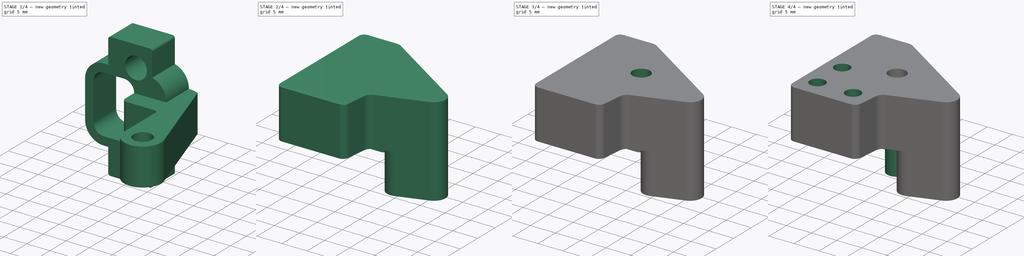
[diagram: build sequence overview — one tinted view per stage of 4, left to right]
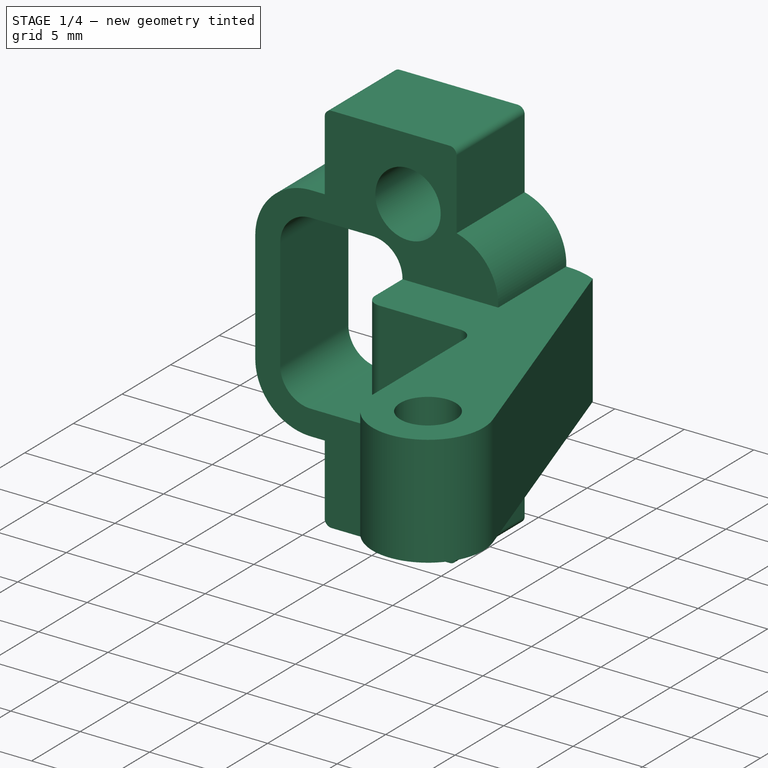
[diagram: stage 1 of 4 — iso view after this stage's code; geometry added in this stage tinted green]
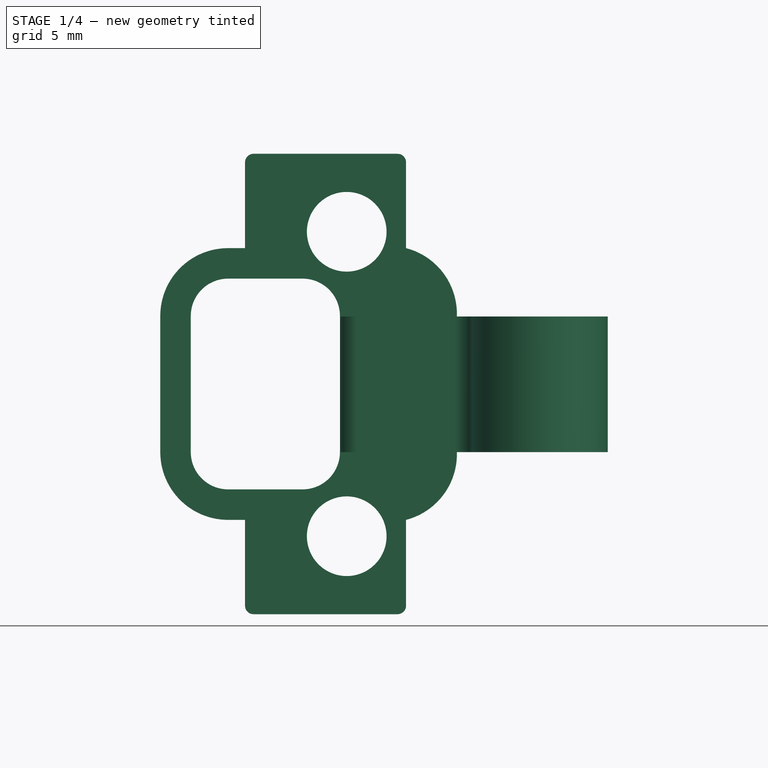
[diagram: stage 1 of 4 — front view after this stage's code; geometry added in this stage tinted green]
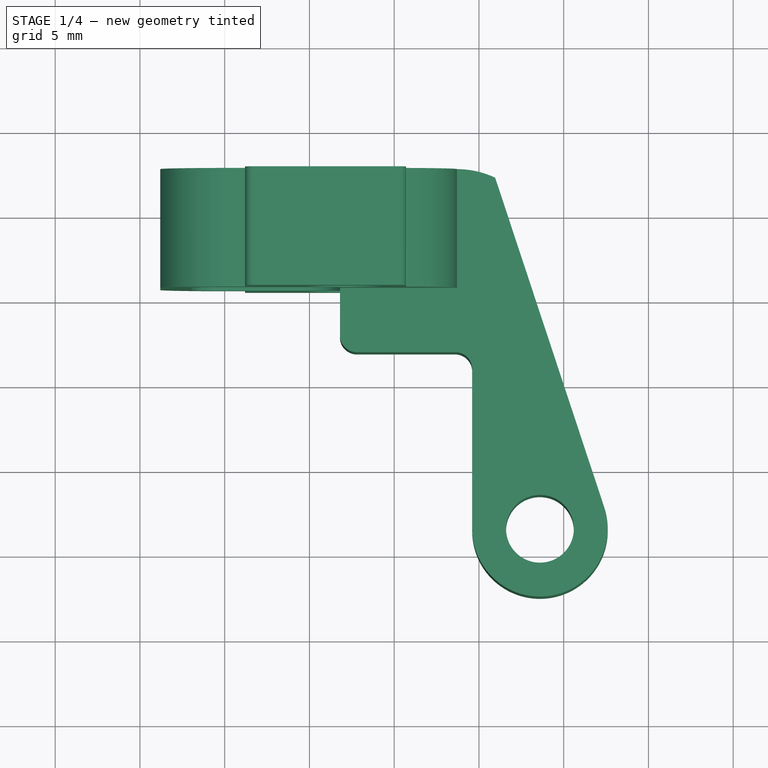
[diagram: stage 1 of 4 — top view after this stage's code; geometry added in this stage tinted green]
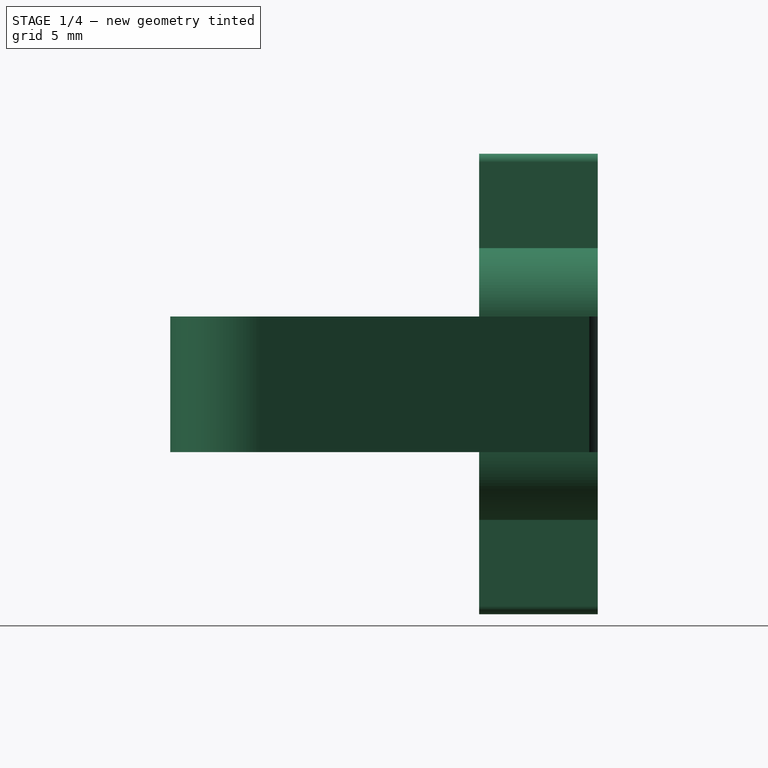
[diagram: stage 1 of 4 — right view after this stage's code; geometry added in this stage tinted green]
FCSTD DOCUMENT  (FreeCAD 2024.2R37226 (Git))
Label: Touch-Probe
License: All rights reserved
LicenseURL: https://en.wikipedia.org/wiki/All_rights_reserved
objects: Sketcher::SketchObject×13, PartDesign::Pad×6, PartDesign::Pocket×5, PartDesign::Plane×4, PartDesign::Body×4, PartDesign::ShapeBinder×3, Spreadsheet::Sheet×2
note: 46 computed .brp shape members not serialized (recipe doc carries the construction recipe); baked Part::Feature solids carry a one-line shape summary decoded from their .brp

FEATURE [Sketcher::SketchObject] Sketch  label="crtouch_screwin"
  AttachmentOffset = pos=(0,0,-17.582) rot=(0,0,1;0rad)
  AttachmentSupport = -> [XZ_Plane]
  FullyConstrained = true
  MapMode = 5
  Placement = pos=(0,17.582,-3.9e-15) rot=(1,0,0;1.5708rad)
  expr: .AttachmentOffset.Base.z = -<<Spreadsheet>>.mount_dist_z - <<Spreadsheet>>.mount_z_offset
  sketch-geometry (39):
    g0: LineSegment StartX=-9.8 StartY=-7.508 StartZ=0 EndX=-5.4 EndY=-7.508 EndZ=0
    g1: LineSegment StartX=-3.2 StartY=-9.708 StartZ=0 EndX=-3.2 EndY=-17.74 EndZ=0
    g2: LineSegment StartX=-5.4 StartY=-19.94 StartZ=0 EndX=-9.8 EndY=-19.94 EndZ=0
    g3: LineSegment StartX=-12 StartY=-17.74 StartZ=0 EndX=-12 EndY=-9.708 EndZ=0
    g4: LineSegment StartX=-13.8 StartY=-9.708 StartZ=0 EndX=-13.8 EndY=-17.74 EndZ=0
    g5: LineSegment StartX=-9.8 StartY=-21.74 StartZ=0 EndX=-8.8 EndY=-21.74 EndZ=0
    g6: LineSegment StartX=-8.8 StartY=-21.74 StartZ=0 EndX=-8.8 EndY=-26.805 EndZ=0
    g7: LineSegment StartX=-8.3 StartY=-27.305 StartZ=0 EndX=0.2 EndY=-27.305 EndZ=0
    g8: LineSegment StartX=0.7 StartY=-26.805 StartZ=0 EndX=0.7 EndY=-21.74 EndZ=0
    g9: LineSegment StartX=3.7 StartY=-17.867 StartZ=0 EndX=3.7 EndY=-9.58098 EndZ=0
    g10: LineSegment StartX=0.7 StartY=-5.708 StartZ=0 EndX=0.7 EndY=-0.643 EndZ=0
    g11: LineSegment StartX=0.2 StartY=-0.143 StartZ=0 EndX=-8.3 EndY=-0.143 EndZ=0
    g12: LineSegment StartX=-8.8 StartY=-0.643 StartZ=0 EndX=-8.8 EndY=-5.708 EndZ=0
    g13: LineSegment StartX=-8.8 StartY=-5.708 StartZ=0 EndX=-9.8 EndY=-5.708 EndZ=0
    g14: ArcOfCircle CenterX=-9.8 CenterY=-9.708 CenterZ=0 NormalX=0 NormalY=0 NormalZ=1 AngleXU=0 Radius=4 StartAngle=1.5708 EndAngle=3.14159
    g15: GeomPoint X=-13.8 Y=-5.708 Z=0
    g16: ArcOfCircle CenterX=-9.8 CenterY=-9.708 CenterZ=0 NormalX=0 NormalY=0 NormalZ=1 AngleXU=0 Radius=2.2 StartAngle=1.5708 EndAngle=3.14159
    g17: GeomPoint X=-12 Y=-7.508 Z=0
    g18: ArcOfCircle CenterX=-9.8 CenterY=-17.74 CenterZ=0 NormalX=0 NormalY=0 NormalZ=1 AngleXU=0 Radius=2.2 StartAngle=3.14159 EndAngle=4.71239
    g19: GeomPoint X=-12 Y=-19.94 Z=0
    g20: ArcOfCircle CenterX=-9.8 CenterY=-17.74 CenterZ=0 NormalX=0 NormalY=0 NormalZ=1 AngleXU=0 Radius=4 StartAngle=3.14159 EndAngle=4.71239
    g21: GeomPoint X=-13.8 Y=-21.74 Z=0
    g22: ArcOfCircle CenterX=-5.4 CenterY=-9.708 CenterZ=0 NormalX=0 NormalY=0 NormalZ=1 AngleXU=0 Radius=2.2 StartAngle=0 EndAngle=1.5708
    g23: GeomPoint X=-3.2 Y=-7.508 Z=0
    g24: ArcOfCircle CenterX=-5.4 CenterY=-17.74 CenterZ=0 NormalX=0 NormalY=0 NormalZ=1 AngleXU=0 Radius=2.2 StartAngle=4.71239 EndAngle=6.28319
    g25: GeomPoint X=-3.2 Y=-19.94 Z=0
    g26: ArcOfCircle CenterX=-0.3 CenterY=-17.867 CenterZ=0 NormalX=0 NormalY=0 NormalZ=1 AngleXU=0 Radius=4 StartAngle=4.96507 EndAngle=6.28319
    g27: ArcOfCircle CenterX=-0.3 CenterY=-9.58098 CenterZ=0 NormalX=0 NormalY=0 NormalZ=1 AngleXU=0 Radius=4 StartAngle=0 EndAngle=1.31812
    g28: ArcOfCircle CenterX=-8.3 CenterY=-26.805 CenterZ=0 NormalX=0 NormalY=0 NormalZ=1 AngleXU=0 Radius=0.5 StartAngle=3.14159 EndAngle=4.71239
    g29: GeomPoint X=-8.8 Y=-27.305 Z=0
    g30: ArcOfCircle CenterX=0.2 CenterY=-26.805 CenterZ=0 NormalX=0 NormalY=0 NormalZ=1 AngleXU=0 Radius=0.5 StartAngle=4.71239 EndAngle=6.28319
    g31: GeomPoint X=0.7 Y=-27.305 Z=0
    g32: ArcOfCircle CenterX=-8.3 CenterY=-0.643 CenterZ=0 NormalX=0 NormalY=0 NormalZ=1 AngleXU=0 Radius=0.5 StartAngle=1.5708 EndAngle=3.14159
    g33: GeomPoint X=-8.8 Y=-0.143 Z=0
    g34: ArcOfCircle CenterX=0.2 CenterY=-0.643 CenterZ=0 NormalX=0 NormalY=0 NormalZ=1 AngleXU=0 Radius=0.5 StartAngle=3.3476e-12 EndAngle=1.5708
    g35: Circle CenterX=-2.8 CenterY=-4.743 CenterZ=0 NormalX=0 NormalY=0 NormalZ=1 AngleXU=0 Radius=2.35
    g36: Circle CenterX=-2.8 CenterY=-22.705 CenterZ=0 NormalX=0 NormalY=0 NormalZ=1 AngleXU=0 Radius=2.35
    g37: LineSegment StartX=0 StartY=0 StartZ=0 EndX=-2.8 EndY=0 EndZ=0
    g38: LineSegment StartX=-2.8 StartY=0 StartZ=0 EndX=-2.8 EndY=-4.743 EndZ=0
  constraints (97):
    c: Horizontal(g0)
    c: Vertical(g1)
    c: Vertical(g3)
    c: Horizontal(g2)
    c: Distance(g25,g0) = 12.432
    c: Distance(g23,g3) = 8.8
    c: Vertical(g4)
    c: Horizontal(g5)
    c: Coincident(g5,g6)
    c: Vertical(g6)
    c: Horizontal(g7)
    c: Vertical(g8)
    c: Vertical(g9)
    c: Vertical(g10)
    c: Horizontal(g11)
    c: Vertical(g12)
    c: Coincident(g12,g13)
    c: Horizontal(g13)
    c: Distance(g10,g12) = 9.5
    c: Distance(g12,g11) = 5.565
    c: Distance(g31,g6) = 9.5
    c: Distance(g5,g7) = 5.565
    c: PointOnObject(g10,g13)
    c: PointOnObject(g8,g5)
    c: Distance(g19,g4) = 1.8
    c: Distance(g13,g0) = 1.8
    c: Distance(g25,g5) = 1.8
    c: PointOnObject(g15,g4)
    c: PointOnObject(g15,g13)
    c: Tangent(g4,g14) = -1.5708
    c: Tangent(g13,g14) = -1.5708
    c: PointOnObject(g17,g3)
    c: PointOnObject(g17,g0)
    c: Tangent(g3,g16) = 1.5708
    c: Tangent(g0,g16) = 1.5708
    c: PointOnObject(g19,g3)
    c: PointOnObject(g19,g2)
    c: Tangent(g3,g18) = 1.5708
    c: Tangent(g2,g18) = 1.5708
    c: PointOnObject(g21,g4)
    c: PointOnObject(g21,g5)
    c: Tangent(g4,g20) = -1.5708
    c: Tangent(g5,g20) = -1.5708
    c: PointOnObject(g23,g0)
    c: PointOnObject(g23,g1)
    c: Tangent(g0,g22) = 1.5708
    c: Tangent(g1,g22) = 1.5708
    c: PointOnObject(g25,g1)
    c: PointOnObject(g25,g2)
    c: Tangent(g1,g24) = 1.5708
    c: Tangent(g2,g24) = 1.5708
    c: Tangent(g9,g26) = -1.5708
    c: Tangent(g9,g27) = -1.5708
    c: PointOnObject(g29,g6)
    c: PointOnObject(g29,g7)
    c: Tangent(g6,g28) = -1.5708
    c: Tangent(g7,g28) = -1.5708
    c: PointOnObject(g31,g7)
    c: PointOnObject(g31,g8)
    c: Tangent(g7,g30) = -1.5708
    c: Tangent(g8,g30) = -1.5708
    c: PointOnObject(g33,g11)
    c: PointOnObject(g33,g12)
    c: Tangent(g11,g32) = -1.5708
    c: Tangent(g12,g32) = -1.5708
    c: Tangent(g11,g34) = -1.5708
    c: Tangent(g10,g34) = -1.5708
    c: Radius(g14) = 4
    c: Equal(g14,g20)
    c: Coincident(g26,g8)
    c: Equal(g20,g26)
    c: Equal(g16,g22)
    c: Equal(g22,g24)
    c: Equal(g24,g18)
    c: Radius(g16) = 2.2
    c: Coincident(g27,g10)
    c: Equal(g26,g27)
    c: Equal(g28,g30)
    c: Equal(g32,g34)
    c: Radius(g32) = 0.5
    c: Equal(g32,g28)
    c: Diameter(g35) = 4.7
    c: Equal(g35,g36)
    c: Distance(g35,g11) = 4.6
    c: Distance(g35,g10) = 3.5
    c: Distance(g36,g8) = 3.5
    c: Distance(g36,g7) = 4.6
    c: Distance(g9,g4) = 17.5
    c: PointOnObject(g5,g12)
    c: Distance(g9,g8) = 3
    c: Coincident(g-1,g37)
    c: PointOnObject(g37,g-1)
    c: Coincident(g37,g38)
    c: Coincident(g38,g35)
    c: Vertical(g38)
    c: DistanceX(g37,g37) = 2.8
    c: DistanceY(g38,g38) = 4.743
FEATURE [Spreadsheet::Sheet] Spreadsheet
  cells = A1='hole_dist_x; B1(hole_dist_x)=7.08; D1='Magnet; E1(magnet_diameter)=6; A2='hole_dist_y; B2(hole_dist_y)=7.018; E2(magnet_height)=3; A3='hole_diam; B3(hole_diam)=4.7; D3='Play; E3(magnet_distance)=0.8; A9='mount_dist_z; B9(mount_dist_z)=12.582; A10='mount_dist_x; B10(mount_dist_x)=2.8; A11='mount_dist_y; B11(mount_dist_y)=4.743; A12='mount_z_offset; B12(mount_z_offset)=5
FEATURE [PartDesign::Pad] Pad
  Direction = (0,-1,2e-16)
  Length = 7
  Length2 = 10
  Placement = pos=(0,0,0) rot=(1,0,0;1.5708rad)
  Profile = -> Sketch
  ReferenceAxis = -> Sketch [N_Axis]
  Refine = true
  Suppressed = false
  Type = 0
FEATURE [PartDesign::Plane] DatumPlane  label="CRMidplane"
  AttachmentOffset = pos=(0,8,-13.6) rot=(0,0,1;0rad)
  AttachmentSupport = -> [Pad]
  Length = 60
  MapMode = 5
  Placement = pos=(0,-8,-13.743) rot=(0,0,1;3.14159rad)
  ResizeMode = 0
  Width = 60
FEATURE [Sketcher::SketchObject] Sketch001  label="mount_swivel"
  AttachmentSupport = -> [DatumPlane]
  ExternalGeometry = -> [Pad]
  FullyConstrained = false
  MapMode = 5
  Placement = pos=(0,-8,-13.743) rot=(0,0,1;3.14159rad)
  expr: Constraints[24] = <<Spreadsheet>>.magnet_height + <<Spreadsheet>>.magnet_distance
  expr: Constraints[25] = <<Spreadsheet>>.magnet_diameter + <<Spreadsheet>>.magnet_distance
  sketch-geometry (13):
    g0: LineSegment StartX=-5.95787 StartY=-25.0779 StartZ=0 EndX=-12.3975 EndY=-5.61681 EndZ=0
    g1: ArcOfCircle CenterX=-8.6 CenterY=-4.36023 CenterZ=0 NormalX=0 NormalY=0 NormalZ=1 AngleXU=0 Radius=4 StartAngle=1e-16 EndAngle=3.46115
    g2: LineSegment StartX=-4.6 StartY=-4.36023 StartZ=0 EndX=-4.6 EndY=-13.782 EndZ=0
    g3: LineSegment StartX=-3.6 StartY=-14.782 StartZ=0 EndX=2.2 EndY=-14.782 EndZ=0
    g4: LineSegment StartX=3.2 StartY=-15.782 StartZ=0 EndX=3.2 EndY=-18.582 EndZ=0
    g5: Circle CenterX=-8.6 CenterY=-4.36023 CenterZ=0 NormalX=0 NormalY=0 NormalZ=1 AngleXU=0 Radius=2
    g6: LineSegment StartX=-3.7 StartY=-25.582 StartZ=0 EndX=-3.7 EndY=-18.582 EndZ=0
    g7: LineSegment StartX=3.2 StartY=-18.582 StartZ=0 EndX=-3.7 EndY=-18.582 EndZ=0
    g8: ArcOfCircle CenterX=2.2 CenterY=-15.782 CenterZ=0 NormalX=0 NormalY=0 NormalZ=1 AngleXU=0 Radius=1 StartAngle=-9e-16 EndAngle=1.5708
    g9: GeomPoint X=3.2 Y=-14.782 Z=0
    g10: ArcOfCircle CenterX=-3.6 CenterY=-13.782 CenterZ=0 NormalX=0 NormalY=0 NormalZ=1 AngleXU=0 Radius=1 StartAngle=3.14159 EndAngle=4.71239
    g11: GeomPoint X=-4.6 Y=-14.782 Z=0
    g12: ArcOfCircle CenterX=-3.7 CenterY=-20.2732 CenterZ=0 NormalX=0 NormalY=0 NormalZ=1 AngleXU=0 Radius=5.30883 StartAngle=4.27309 EndAngle=4.71239
  constraints (28):
    c: Tangent(g1,g2) = 1.5708
    c: Horizontal(g3)
    c: Radius(g5) = 2
    c: Coincident(g5,g1)
    c: Distance(g5,g1) = 2
    c: Vertical(g4)
    c: Coincident(g6,g-7)
    c: Coincident(g4,g-3)
    c: Coincident(g4,g7)
    c: PointOnObject(g9,g3)
    c: PointOnObject(g9,g4)
    c: Tangent(g3,g8) = 1.5708
    c: Tangent(g4,g8) = 1.5708
    c: Radius(g8) = 1
    c: PointOnObject(g11,g3)
    c: PointOnObject(g11,g2)
    c: Tangent(g3,g10) = -1.5708
    c: Tangent(g2,g10) = -1.5708
    c: Radius(g10) = 1
    c: Coincident(g7,g6)
    c: Coincident(g6,g-8)
    c: Coincident(g12,g6)
    c: Coincident(g12,g0)
    c: PointOnObject(g12,g6)
    c: DistanceY(g4,g3) = 3.8
    c: DistanceX(g3,g4) = 6.8
    c: Vertical(g2)
    c: Tangent(g1,g0) = 1.5708
FEATURE [PartDesign::Pad] Pad001  label="mount_swivel001"
  BaseFeature = -> Pad
  Direction = (0,0,1)
  Length = 4
  Length2 = 4
  Placement = pos=(0,0,0) rot=(1,0,0;1.5708rad)
  Profile = -> Sketch001
  ReferenceAxis = -> Sketch001 [N_Axis]
  Refine = true
  Suppressed = false
  Type = 4
FEATURE [PartDesign::Plane] DatumPlane001
  AttachmentOffset = pos=(0,0,-27.343) rot=(0,0,1;0rad)
  Length = 60
  MapMode = 2
  Placement = pos=(0,-6e-15,0.038) rot=(1,0,0;3.14159rad)
  ResizeMode = 0
  Width = 60
FEATURE [Spreadsheet::Sheet] Spreadsheet001
  cells = A1='hole_dist_x; B1(hole_dist_x)=7.08; D1='Magnet; E1(magnet_diameter)=6; A2='hole_dist_y; B2(hole_dist_y)=7.018; E2(magnet_height)=3; A3='hole_diam; B3(hole_diam)=4.7
FEATURE [Sketcher::SketchObject] Sketch012
  AttachmentSupport = -> [XY_Plane005]
  FullyConstrained = false
  MapMode = 5
  expr: Constraints[6] = <<Spreadsheet>>.hole_dist_x
  expr: Constraints[7] = <<Spreadsheet>>.hole_dist_y
  sketch-geometry (38):
    g0: Circle CenterX=0 CenterY=0 CenterZ=0 NormalX=0 NormalY=0 NormalZ=1 AngleXU=0 Radius=1.5
    g1: LineSegment StartX=0 StartY=0 StartZ=0 EndX=7.08 EndY=0 EndZ=0
    g2: LineSegment StartX=0 StartY=0 StartZ=0 EndX=0 EndY=-7.018 EndZ=0
    g3: Circle CenterX=7.08 CenterY=0 CenterZ=0 NormalX=0 NormalY=0 NormalZ=1 AngleXU=0 Radius=1.5
    g4: Circle CenterX=14.16 CenterY=0 CenterZ=0 NormalX=0 NormalY=0 NormalZ=1 AngleXU=0 Radius=1.5
    g5: Circle CenterX=21.24 CenterY=0 CenterZ=0 NormalX=0 NormalY=0 NormalZ=1 AngleXU=0 Radius=1.5
    g6: Circle CenterX=28.32 CenterY=0 CenterZ=0 NormalX=0 NormalY=0 NormalZ=1 AngleXU=0 Radius=1.5
    g7: Circle CenterX=35.4 CenterY=0 CenterZ=0 NormalX=0 NormalY=0 NormalZ=1 AngleXU=0 Radius=1.5
    g8: Circle CenterX=42.48 CenterY=0 CenterZ=0 NormalX=0 NormalY=0 NormalZ=1 AngleXU=0 Radius=1.5
    g9: Circle CenterX=0 CenterY=-7.018 CenterZ=0 NormalX=0 NormalY=0 NormalZ=1 AngleXU=0 Radius=1.5
    g10: Circle CenterX=7.08 CenterY=-7.018 CenterZ=0 NormalX=0 NormalY=0 NormalZ=1 AngleXU=0 Radius=1.5
    g11: Circle CenterX=14.16 CenterY=-7.018 CenterZ=0 NormalX=0 NormalY=0 NormalZ=1 AngleXU=0 Radius=1.5
    g12: Circle CenterX=21.24 CenterY=-7.018 CenterZ=0 NormalX=0 NormalY=0 NormalZ=1 AngleXU=0 Radius=1.5
    g13: Circle CenterX=28.32 CenterY=-7.018 CenterZ=0 NormalX=0 NormalY=0 NormalZ=1 AngleXU=0 Radius=1.5
    g14: Circle CenterX=35.4 CenterY=-7.018 CenterZ=0 NormalX=0 NormalY=0 NormalZ=1 AngleXU=0 Radius=1.5
    g15: Circle CenterX=42.48 CenterY=-7.018 CenterZ=0 NormalX=0 NormalY=0 NormalZ=1 AngleXU=0 Radius=1.5
    g16: Circle CenterX=0 CenterY=-14.036 CenterZ=0 NormalX=0 NormalY=0 NormalZ=1 AngleXU=0 Radius=1.5
    g17: Circle CenterX=7.08 CenterY=-14.036 CenterZ=0 NormalX=0 NormalY=0 NormalZ=1 AngleXU=0 Radius=1.5
    g18: Circle CenterX=14.16 CenterY=-14.036 CenterZ=0 NormalX=0 NormalY=0 NormalZ=1 AngleXU=0 Radius=1.5
    g19: Circle CenterX=21.24 CenterY=-14.036 CenterZ=0 NormalX=0 NormalY=0 NormalZ=1 AngleXU=0 Radius=1.5
    g20: Circle CenterX=28.32 CenterY=-14.036 CenterZ=0 NormalX=0 NormalY=0 NormalZ=1 AngleXU=0 Radius=1.5
    g21: Circle CenterX=35.4 CenterY=-14.036 CenterZ=0 NormalX=0 NormalY=0 NormalZ=1 AngleXU=0 Radius=1.5
    g22: Circle CenterX=42.48 CenterY=-14.036 CenterZ=0 NormalX=0 NormalY=0 NormalZ=1 AngleXU=0 Radius=1.5
    g23: Circle CenterX=0 CenterY=-21.054 CenterZ=0 NormalX=0 NormalY=0 NormalZ=1 AngleXU=0 Radius=1.5
    g24: Circle CenterX=7.08 CenterY=-21.054 CenterZ=0 NormalX=0 NormalY=0 NormalZ=1 AngleXU=0 Radius=1.5
    g25: Circle CenterX=14.16 CenterY=-21.054 CenterZ=0 NormalX=0 NormalY=0 NormalZ=1 AngleXU=0 Radius=1.5
    g26: Circle CenterX=21.24 CenterY=-21.054 CenterZ=0 NormalX=0 NormalY=0 NormalZ=1 AngleXU=0 Radius=1.5
    g27: Circle CenterX=28.32 CenterY=-21.054 CenterZ=0 NormalX=0 NormalY=0 NormalZ=1 AngleXU=0 Radius=1.5
    g28: Circle CenterX=35.4 CenterY=-21.054 CenterZ=0 NormalX=0 NormalY=0 NormalZ=1 AngleXU=0 Radius=1.5
    g29: Circle CenterX=42.48 CenterY=-21.054 CenterZ=0 NormalX=0 NormalY=0 NormalZ=1 AngleXU=0 Radius=1.5
    g30: Circle CenterX=0 CenterY=-28.072 CenterZ=0 NormalX=0 NormalY=0 NormalZ=1 AngleXU=0 Radius=1.5
    g31: Circle CenterX=7.08 CenterY=-28.072 CenterZ=0 NormalX=0 NormalY=0 NormalZ=1 AngleXU=0 Radius=1.5
    g32: Circle CenterX=14.16 CenterY=-28.072 CenterZ=0 NormalX=0 NormalY=0 NormalZ=1 AngleXU=0 Radius=1.5
    g33: Circle CenterX=21.24 CenterY=-28.072 CenterZ=0 NormalX=0 NormalY=0 NormalZ=1 AngleXU=0 Radius=1.5
    g34: Circle CenterX=28.32 CenterY=-28.072 CenterZ=0 NormalX=0 NormalY=0 NormalZ=1 AngleXU=0 Radius=1.5
    g35: Circle CenterX=35.4 CenterY=-28.072 CenterZ=0 NormalX=0 NormalY=0 NormalZ=1 AngleXU=0 Radius=1.5
    g36: Circle CenterX=42.48 CenterY=-28.072 CenterZ=0 NormalX=0 NormalY=0 NormalZ=1 AngleXU=0 Radius=1.5
    g37: GeomPoint X=0 Y=0 Z=0
  constraints (10):
    c: Radius(g0) = 1.5
    c: Coincident(g0,g-1)
    c: Coincident(g1,g0)
    c: PointOnObject(g1,g-1)
    c: Coincident(g2,g0)
    c: PointOnObject(g2,g-2)
    c: DistanceX(g1,g1) = 7.08
    c: DistanceY(g2,g2) = 7.018
    c: Equal(g0, g3-g36) x34
    c: Coincident(g37,g0)
FEATURE [PartDesign::Body] Body005  label="Mount"
  Group = -> [Sketch012]
  Origin = -> Origin005
FEATURE [PartDesign::Plane] DatumPlane005
  AttachmentSupport = -> [Pad001]
  Length = 60
  MapMode = 5
  Placement = pos=(0,0,-17.743) rot=(1,0,0;3.14159rad)
  ResizeMode = 0
  Width = 60
FEATURE [Sketcher::SketchObject] Sketch013  label="Magnet_holes_arm"
  AttachmentSupport = -> [Pad001]
  ExternalGeometry = -> [Pad001]
  FullyConstrained = false
  MapMode = 5
  Placement = pos=(0,0,-17.743) rot=(1,0,0;3.14159rad)
  expr: Constraints[17] = <<Spreadsheet>>.magnet_height
  expr: Constraints[18] = <<Spreadsheet>>.magnet_diameter
  expr: Constraints[21] = <<Spreadsheet>>.magnet_distance
  expr: Constraints[8] = <<Spreadsheet>>.magnet_height
  expr: Constraints[9] = <<Spreadsheet>>.magnet_diameter
  sketch-geometry (8):
    g0: LineSegment StartX=-2.3 StartY=-7.582 StartZ=0 EndX=-2.3 EndY=-10.582 EndZ=0
    g1: LineSegment StartX=-2.3 StartY=-10.582 StartZ=0 EndX=3.7 EndY=-10.582 EndZ=0
    g2: LineSegment StartX=3.7 StartY=-10.582 StartZ=0 EndX=3.7 EndY=-7.582 EndZ=0
    g3: LineSegment StartX=3.7 StartY=-7.582 StartZ=0 EndX=-2.3 EndY=-7.582 EndZ=0
    g4: LineSegment StartX=7.47209 StartY=-0.405511 StartZ=0 EndX=10.3202 EndY=-1.34795 EndZ=0
    g5: LineSegment StartX=10.3202 StartY=-1.34795 StartZ=0 EndX=8.43534 EndY=-7.0442 EndZ=0
    g6: LineSegment StartX=8.43534 StartY=-7.0442 StartZ=0 EndX=5.58722 EndY=-6.10176 EndZ=0
    g7: LineSegment StartX=5.58722 StartY=-6.10176 StartZ=0 EndX=7.47209 EndY=-0.405511 EndZ=0
  constraints (22):
    c: Coincident(g0,g1)
    c: Coincident(g1,g2)
    c: Coincident(g2,g3)
    c: Coincident(g3,g0)
    c: Vertical(g0)
    c: Vertical(g2)
    c: Horizontal(g1)
    c: Horizontal(g3)
    c: DistanceY(g2,g2) = 3
    c: DistanceX(g3,g3) = 6
    c: Coincident(g4,g5)
    c: Coincident(g5,g6)
    c: Coincident(g6,g7)
    c: Coincident(g7,g4)
    c: Perpendicular(g4,g7)
    c: Perpendicular(g5,g4)
    c: Perpendicular(g6,g5)
    c: Distance(g6,g6) = 3
    c: Distance(g7,g7) = 6
    c: Coincident(g1,g-6)
    c: Parallel(g-8,g5)
    c: Distance(g-8,g5) = 0.8
FEATURE [PartDesign::Pocket] Pocket
  BaseFeature = -> Pad001
  Direction = (0,0,1)
  Length = 7
  Length2 = 5
  Placement = pos=(0,0,0) rot=(1,0,0;1.5708rad)
  Profile = -> Sketch013
  ReferenceAxis = -> Sketch013 [N_Axis]
  Refine = true
  Suppressed = false
  Type = 0
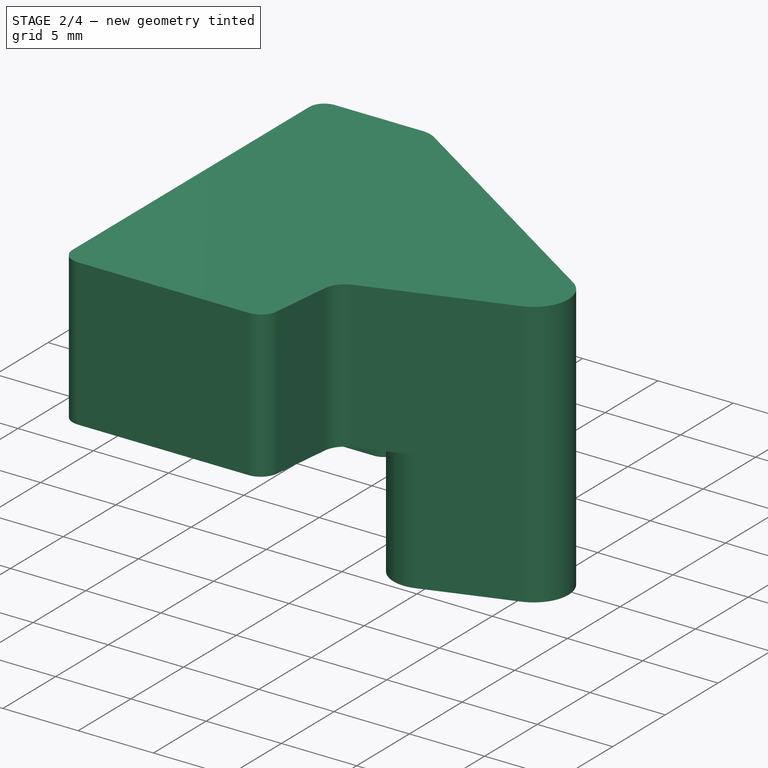
[diagram: stage 2 of 4 — iso view after this stage's code; geometry added in this stage tinted green]
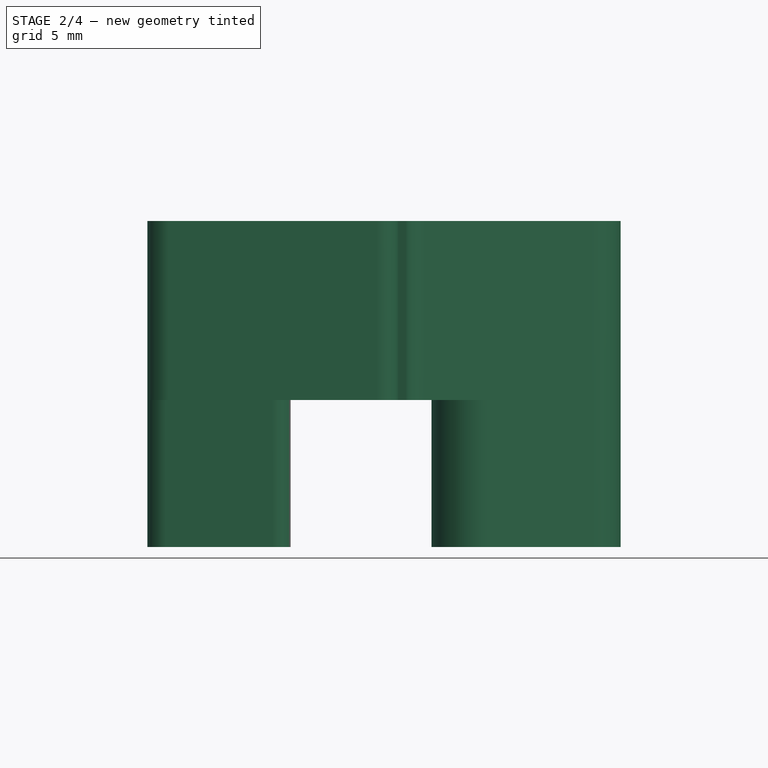
[diagram: stage 2 of 4 — front view after this stage's code; geometry added in this stage tinted green]
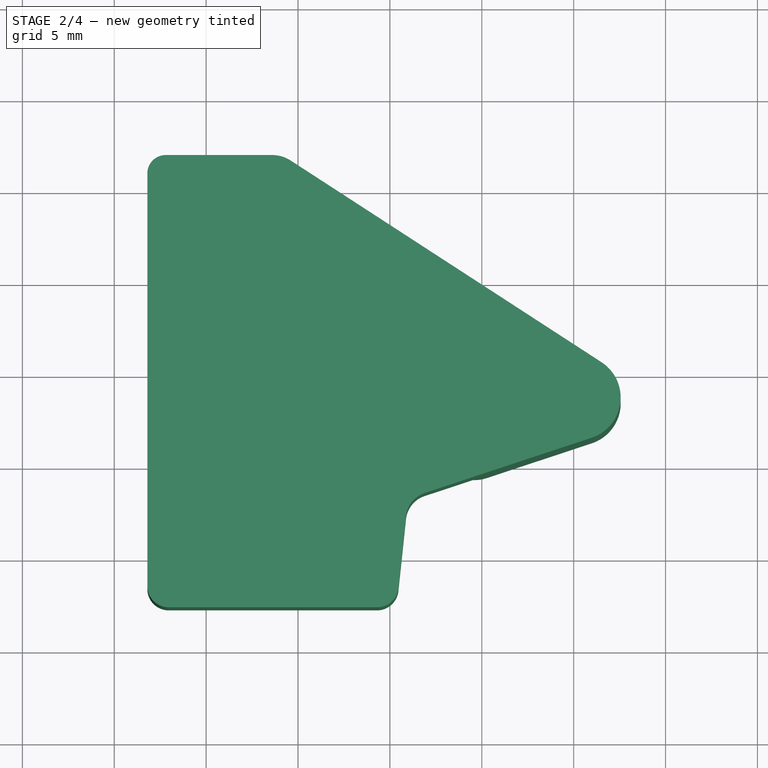
[diagram: stage 2 of 4 — top view after this stage's code; geometry added in this stage tinted green]
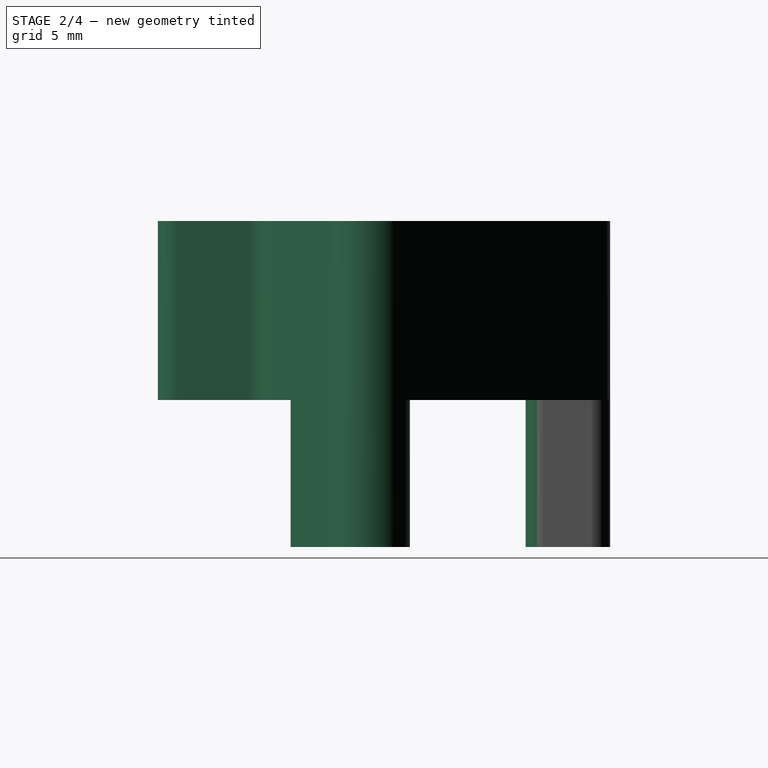
[diagram: stage 2 of 4 — right view after this stage's code; geometry added in this stage tinted green]
FEATURE [PartDesign::Body] Body003  label="rotator"
  Group = -> [ShapeBinder,DatumPlane002,Sketch006,Pad004]
  Origin = -> Origin003
  Tip = -> Pad004
FEATURE [PartDesign::ShapeBinder] ShapeBinder001
  Support = -> [Body]
  TraceSupport = false
FEATURE [Sketcher::SketchObject] Sketch003
  AttachmentSupport = -> [XY_Plane001]
  ExternalGeometry = -> [ShapeBinder001]
  FullyConstrained = true
  MapMode = 2
  expr: Constraints[31] = <<Spreadsheet>>.magnet_height + <<Spreadsheet>>.magnet_distance * 2
  sketch-geometry (12):
    g0: LineSegment StartX=-2.2 StartY=6.782 StartZ=0 EndX=3.6 EndY=6.782 EndZ=0
    g1: LineSegment StartX=4.6 StartY=5.782 StartZ=0 EndX=4.6 EndY=3.182 EndZ=0
    g2: LineSegment StartX=3.6 StartY=2.182 StartZ=0 EndX=-2.2 EndY=2.182 EndZ=0
    g3: LineSegment StartX=-3.2 StartY=3.182 StartZ=0 EndX=-3.2 EndY=5.782 EndZ=0
    g4: ArcOfCircle CenterX=3.41443 CenterY=5.59643 CenterZ=0 NormalX=0 NormalY=0 NormalZ=1 AngleXU=0 Radius=1.2 StartAngle=0.155261 EndAngle=1.41554
    g5: ArcOfCircle CenterX=-2.2 CenterY=5.782 CenterZ=0 NormalX=0 NormalY=0 NormalZ=1 AngleXU=0 Radius=1 StartAngle=1.5708 EndAngle=3.14159
    g6: ArcOfCircle CenterX=-2.2 CenterY=3.182 CenterZ=0 NormalX=0 NormalY=0 NormalZ=1 AngleXU=0 Radius=1 StartAngle=3.14159 EndAngle=4.71239
    g7: ArcOfCircle CenterX=3.6 CenterY=3.182 CenterZ=0 NormalX=0 NormalY=0 NormalZ=1 AngleXU=0 Radius=1 StartAngle=4.71239 EndAngle=6.28319
    g8: LineSegment StartX=-2.2 StartY=2.182 StartZ=0 EndX=-2.2 EndY=6.782 EndZ=0
    g9: LineSegment StartX=3.6 StartY=6.782 StartZ=0 EndX=3.6 EndY=2.182 EndZ=0
    g10: LineSegment StartX=-3.2 StartY=3.182 StartZ=0 EndX=4.6 EndY=3.182 EndZ=0
    g11: LineSegment StartX=4.6 StartY=5.782 StartZ=0 EndX=-3.2 EndY=5.782 EndZ=0
  constraints (32):
    c: Horizontal(g0)
    c: Vertical(g1)
    c: Vertical(g3)
    c: Horizontal(g2)
    c: Equal(g2,g0)
    c: Equal(g3,g1)
    c: PointOnObject(g-5,g0)
    c: Coincident(g4,g0)
    c: Coincident(g4,g1)
    c: Coincident(g6,g2)
    c: Coincident(g7,g1)
    c: PointOnObject(g-5,g1)
    c: PointOnObject(g-6,g3)
    c: Coincident(g2,g8)
    c: Coincident(g8,g-6)
    c: Vertical(g8)
    c: Coincident(g0,g9)
    c: Coincident(g9,g2)
    c: Vertical(g9)
    c: Coincident(g3,g10)
    c: Coincident(g10,g1)
    c: Horizontal(g10)
    c: Coincident(g1,g11)
    c: Coincident(g11,g3)
    c: Tangent(g6,g3) = 1.5708
    c: Tangent(g7,g2) = 1.5708
    c: Tangent(g5,g0) = 1.5708
    c: Tangent(g5,g3) = 1.5708
    c: Equal(g5,g6)
    c: Equal(g6,g7)
    c: Radius(g4) = 1.2
    c: Distance(g0,g2) = 4.6
FEATURE [PartDesign::Pad] Pad003
  Direction = (0,0,1)
  Length = 10
  Length2 = 10
  Profile = -> Sketch003
  ReferenceAxis = -> Sketch003 [N_Axis]
  Refine = true
  Reversed = true
  Suppressed = false
  Type = 3
  UpToFace = -> ShapeBinder001 [Face32]
FEATURE [PartDesign::ShapeBinder] ShapeBinder002
  Support = -> [Sketch012]
  TraceSupport = false
FEATURE [Sketcher::SketchObject] Sketch018
  AttachmentSupport = -> [XY_Plane001]
  ExternalGeometry = -> [ShapeBinder002]
  FullyConstrained = true
  MapMode = 5
  sketch-geometry (3):
    g0: Circle CenterX=0 CenterY=-7.018 CenterZ=0 NormalX=0 NormalY=0 NormalZ=1 AngleXU=0 Radius=1.5
    g1: Circle CenterX=0 CenterY=-14.036 CenterZ=0 NormalX=0 NormalY=0 NormalZ=1 AngleXU=0 Radius=1.5
    g2: Circle CenterX=7.08 CenterY=-14.036 CenterZ=0 NormalX=0 NormalY=0 NormalZ=1 AngleXU=0 Radius=1.5
  constraints (6):
    c: Radius(g0) = 1.5
    c: Tangent(g0,g-3) = -1.5708
    c: Radius(g1) = 1.5
    c: Tangent(g1,g-4) = -1.5708
    c: Radius(g2) = 1.5
    c: Coincident(g2,g-5)
FEATURE [PartDesign::Body] Body001  label="attachment"
  Group = -> [ShapeBinder001,DatumPlane001,Sketch003,Pad003,Sketch010,Sketch014,Sketch015,Pad005,Pad006,Sketch016,Pocket001,Sketch017,Pocket002,ShapeBinder002,Sketch018,Pocket003,Sketch019,Pocket004]
  Origin = -> Origin001
  Tip = -> Pocket004
FEATURE [Sketcher::SketchObject] Sketch010  label="MagnetHoles_reference"
  AttachmentSupport = -> [Body001]
  ExternalGeometry = -> [Pad003,ShapeBinder001]
  FullyConstrained = true
  MapMode = 2
  expr: Constraints[15] = <<Spreadsheet>>.magnet_height
  expr: Constraints[16] = <<Spreadsheet>>.magnet_diameter
  expr: Constraints[39] = <<Spreadsheet>>.magnet_distance * 2
  expr: Constraints[45] = Spreadsheet.magnet_distance * 2
  sketch-geometry (16):
    g0: LineSegment StartX=8.6 StartY=-3.63977 StartZ=0 EndX=7.28222 EndY=0.342682 EndZ=0
    g1: LineSegment StartX=8.6 StartY=-3.63977 StartZ=0 EndX=12.5824 EndY=-2.32199 EndZ=0
    g2: LineSegment StartX=7.28222 StartY=0.342682 StartZ=0 EndX=7.47209 EndY=0.405511 EndZ=0
    g3: LineSegment StartX=13.5877 StartY=-5.35999 StartZ=0 EndX=19.284 EndY=-3.47511 EndZ=0
    g4: LineSegment StartX=19.284 StartY=-3.47511 StartZ=0 EndX=18.3415 EndY=-0.626987 EndZ=0
    g5: LineSegment StartX=18.3415 StartY=-0.626987 StartZ=0 EndX=12.6453 EndY=-2.51186 EndZ=0
    g6: LineSegment StartX=12.6453 StartY=-2.51186 StartZ=0 EndX=13.5877 EndY=-5.35999 EndZ=0
    g7: LineSegment StartX=15.0328 StartY=-9.72711 StartZ=0 EndX=20.729 EndY=-7.84224 EndZ=0
    g8: LineSegment StartX=20.729 StartY=-7.84224 StartZ=0 EndX=19.7866 EndY=-4.99411 EndZ=0
    g9: LineSegment StartX=19.7866 StartY=-4.99411 StartZ=0 EndX=14.0903 EndY=-6.87899 EndZ=0
    g10: LineSegment StartX=14.0903 StartY=-6.87899 StartZ=0 EndX=15.0328 EndY=-9.72711 EndZ=0
    g11: LineSegment StartX=-2.3 StartY=2.982 StartZ=0 EndX=3.7 EndY=2.982 EndZ=0
    g12: LineSegment StartX=3.7 StartY=2.982 StartZ=0 EndX=3.7 EndY=5.982 EndZ=0
    g13: LineSegment StartX=3.7 StartY=5.982 StartZ=0 EndX=-2.3 EndY=5.982 EndZ=0
    g14: LineSegment StartX=-2.3 StartY=5.982 StartZ=0 EndX=-2.3 EndY=2.982 EndZ=0
    g15: LineSegment StartX=12.5824 StartY=-2.32199 StartZ=0 EndX=12.6453 EndY=-2.51186 EndZ=0
  constraints (46):
    c: Coincident(g0,g-11)
    c: Parallel(g0,g-8)
    c: PointOnObject(g0,g-10)
    c: Coincident(g0,g1)
    c: Equal(g0,g1)
    c: Perpendicular(g0,g1)
    c: Coincident(g0,g2)
    c: Coincident(g2,g-10)
    c: Coincident(g3,g4)
    c: Coincident(g4,g5)
    c: Coincident(g5,g6)
    c: Coincident(g6,g3)
    c: Perpendicular(g4,g3)
    c: Perpendicular(g4,g5)
    c: Perpendicular(g3,g6)
    c: Distance(g4,g4) = 3
    c: Distance(g5,g5) = 6
    c: Coincident(g7,g8)
    c: Coincident(g8,g9)
    c: Coincident(g9,g10)
    c: Coincident(g10,g7)
    c: Parallel(g10,g8)
    c: Parallel(g9,g7)
    c: Parallel(g7,g5)
    c: Parallel(g10,g6)
    c: Equal(g7,g5)
    c: Equal(g4,g8)
    c: PointOnObject(g5,g10)
    c: Coincident(g11,g12)
    c: Coincident(g12,g13)
    c: Coincident(g13,g14)
    c: Coincident(g14,g11)
    c: Horizontal(g11)
    c: Horizontal(g13)
    c: Vertical(g12)
    c: Vertical(g14)
    c: PointOnObject(g-13,g14)
    c: PointOnObject(g-14,g12)
    c: Equal(g12,g-14)
    c: Distance(g-12,g13) = 1.6
    c: Coincident(g1,g15)
    c: Coincident(g15,g5)
    c: Perpendicular(g5,g15)
    c: Perpendicular(g1,g15)
    c: Equal(g15,g2)
    c: Distance(g9,g3) = 1.6
FEATURE [Sketcher::SketchObject] Sketch014
  AttachmentSupport = -> [XY_Plane001]
  ExternalGeometry = -> [ShapeBinder001,Sketch010]
  FullyConstrained = true
  MapMode = 5
  expr: Constraints[28] = <<Spreadsheet>>.magnet_distance
  expr: Constraints[31] = <<Spreadsheet>>.magnet_distance
  sketch-geometry (12):
    g0: LineSegment StartX=8.6 StartY=-3.63977 StartZ=0 EndX=7.28222 EndY=0.342682 EndZ=0
    g1: LineSegment StartX=7.28222 StartY=0.342682 StartZ=0 EndX=7.47209 EndY=0.405511 EndZ=0
    g2: LineSegment StartX=8.6 StartY=-3.63977 StartZ=0 EndX=12.5824 EndY=-2.32199 EndZ=0
    g3: LineSegment StartX=13.5877 StartY=-5.35999 StartZ=0 EndX=19.284 EndY=-3.47511 EndZ=0
    g4: LineSegment StartX=19.284 StartY=-3.47511 StartZ=0 EndX=18.3415 EndY=-0.626987 EndZ=0
    g5: LineSegment StartX=18.3415 StartY=-0.626987 StartZ=0 EndX=12.6453 EndY=-2.51186 EndZ=0
    g6: LineSegment StartX=12.6453 StartY=-2.51186 StartZ=0 EndX=13.5877 EndY=-5.35999 EndZ=0
    g7: LineSegment StartX=12.6453 StartY=-2.51186 StartZ=0 EndX=12.5824 EndY=-2.32199 EndZ=0
    g8: ArcOfCircle CenterX=14.5616 CenterY=-8.30305 CenterZ=0 NormalX=0 NormalY=0 NormalZ=1 AngleXU=0 Radius=2.3 StartAngle=1.89035 EndAngle=5.03195
    g9: ArcOfCircle CenterX=20.2578 CenterY=-6.41817 CenterZ=0 NormalX=0 NormalY=0 NormalZ=1 AngleXU=0 Radius=2.3 StartAngle=5.03195 EndAngle=8.17354
    g10: LineSegment StartX=13.839 StartY=-6.11949 StartZ=0 EndX=19.5353 EndY=-4.23461 EndZ=0
    g11: LineSegment StartX=15.2841 StartY=-10.4866 StartZ=0 EndX=20.9804 EndY=-8.60174 EndZ=0
  constraints (32):
    c: Coincident(g0,g-8)
    c: Coincident(g0,g1)
    c: Coincident(g1,g-6)
    c: Parallel(g1,g-6)
    c: Parallel(g0,g-3)
    c: Coincident(g0,g2)
    c: Equal(g0,g2)
    c: Perpendicular(g0,g2)
    c: Coincident(g3,g4)
    c: Coincident(g4,g5)
    c: Coincident(g5,g6)
    c: Coincident(g6,g3)
    c: Equal(g3,g5)
    c: Equal(g5,g-5)
    c: Equal(g6,g4)
    c: Equal(g6,g-6)
    c: Perpendicular(g3,g6)
    c: Coincident(g5,g7)
    c: Coincident(g7,g2)
    c: Perpendicular(g5,g7)
    c: Perpendicular(g2,g7)
    c: Equal(g7,g1)
    c: Tangent(g8,g10) = 1.5708
    c: Tangent(g8,g11) = -1.5708
    c: Tangent(g9,g10) = 1.5708
    c: Tangent(g9,g11) = -1.5708
    c: Equal(g8,g9)
    c: Parallel(g10,g3)
    c: Distance(g3,g10) = 0.8
    c: PointOnObject(g8,g6)
    c: PointOnObject(g9,g4)
    c: Distance(g-11,g11) = 0.8
FEATURE [Sketcher::SketchObject] Sketch015
  AttachmentSupport = -> [XY_Plane001]
  ExternalGeometry = -> [Pad003,ShapeBinder001,Sketch010,Sketch014]
  FullyConstrained = false
  MapMode = 5
  sketch-geometry (16):
    g0: LineSegment StartX=-3.2 StartY=5.782 StartZ=0 EndX=-3.2 EndY=-16.6627 EndZ=0
    g1: ArcOfCircle CenterX=-2.2 CenterY=5.782 CenterZ=0 NormalX=0 NormalY=0 NormalZ=1 AngleXU=0 Radius=1 StartAngle=1.5708 EndAngle=3.14159
    g2: LineSegment StartX=-2.2 StartY=6.782 StartZ=0 EndX=3.6 EndY=6.782 EndZ=0
    g3: LineSegment StartX=4.59549 StartY=6.48731 StartZ=0 EndX=21.5098 EndY=-4.4888 EndZ=0
    g4: LineSegment StartX=10.8756 StartY=-12.8706 StartZ=0 EndX=10.4618 EndY=-16.7854 EndZ=0
    g5: LineSegment StartX=9.30108 StartY=-17.8298 StartZ=0 EndX=-2.03283 EndY=-17.8298 EndZ=0
    g6: ArcOfCircle CenterX=20.2578 CenterY=-6.41817 CenterZ=0 NormalX=0 NormalY=0 NormalZ=1 AngleXU=0 Radius=2.3 StartAngle=5.03195 EndAngle=7.27836
    g7: LineSegment StartX=11.8922 StartY=-11.609 StartZ=0 EndX=20.9804 EndY=-8.60174 EndZ=0
    g8: ArcOfCircle CenterX=3.6 CenterY=4.95325 CenterZ=0 NormalX=0 NormalY=0 NormalZ=1 AngleXU=0 Radius=1.82875 StartAngle=0.995178 EndAngle=1.5708
    g9: GeomPoint X=4.14136 Y=6.782 Z=0
    g10: ArcOfCircle CenterX=12.3616 CenterY=-13.0277 CenterZ=0 NormalX=0 NormalY=0 NormalZ=1 AngleXU=0 Radius=1.49433 StartAngle=1.89035 EndAngle=3.03628
    g11: GeomPoint X=10.9769 Y=-11.9118 Z=0
    g12: ArcOfCircle CenterX=9.30108 CenterY=-16.6627 CenterZ=0 NormalX=0 NormalY=0 NormalZ=1 AngleXU=0 Radius=1.16717 StartAngle=4.71239 EndAngle=6.17787
    g13: GeomPoint X=10.3514 Y=-17.8298 Z=0
    g14: ArcOfCircle CenterX=-2.03283 CenterY=-16.6627 CenterZ=0 NormalX=0 NormalY=0 NormalZ=1 AngleXU=0 Radius=1.16717 StartAngle=3.14159 EndAngle=4.71239
    g15: GeomPoint X=-3.2 Y=-17.8298 Z=0
  constraints (30):
    c: Coincident(g-7,g0)
    c: Coincident(g1,g-3)
    c: Coincident(g1,g0)
    c: Tangent(g1,g2) = 1.5708
    c: PointOnObject(g-7,g0)
    c: Coincident(g6,g-12)
    c: Coincident(g6,g-12)
    c: Tangent(g6,g3,g3) = 1.5708
    c: Coincident(g7,g6)
    c: Parallel(g7,g-14)
    c: Horizontal(g5)
    c: PointOnObject(g9,g3)
    c: PointOnObject(g9,g2)
    c: Tangent(g3,g8) = 1.5708
    c: Tangent(g2,g8) = 1.5708
    c: Coincident(g2,g-5)
    c: PointOnObject(g11,g4)
    c: PointOnObject(g11,g7)
    c: Tangent(g4,g10) = -1.5708
    c: Tangent(g7,g10) = 1.5708
    c: PointOnObject(g13,g5)
    c: PointOnObject(g13,g4)
    c: Tangent(g5,g12) = 1.5708
    c: Tangent(g4,g12) = 1.5708
    c: PointOnObject(g15,g5)
    c: PointOnObject(g15,g0)
    c: Tangent(g5,g14) = 1.5708
    c: Tangent(g0,g14) = -1.5708
    c: Equal(g12,g14)
    c: Coincident(g6,g3)
FEATURE [PartDesign::Pad] Pad005
  BaseFeature = -> Pad003
  Direction = (0,0,1)
  Length = 10
  Length2 = 10
  Profile = -> Sketch015
  ReferenceAxis = -> Sketch015 [N_Axis]
  Refine = true
  Suppressed = false
  Type = 3
  UpToFace = -> ShapeBinder001 [Face33]
FEATURE [PartDesign::Pad] Pad006
  BaseFeature = -> Pad005
  Direction = (0,0,1)
  Length = 10
  Length2 = 10
  Profile = -> Sketch014
  ReferenceAxis = -> Sketch014 [N_Axis]
  Refine = true
  Suppressed = false
  Type = 3
  UpToFace = -> ShapeBinder001 [Face32]
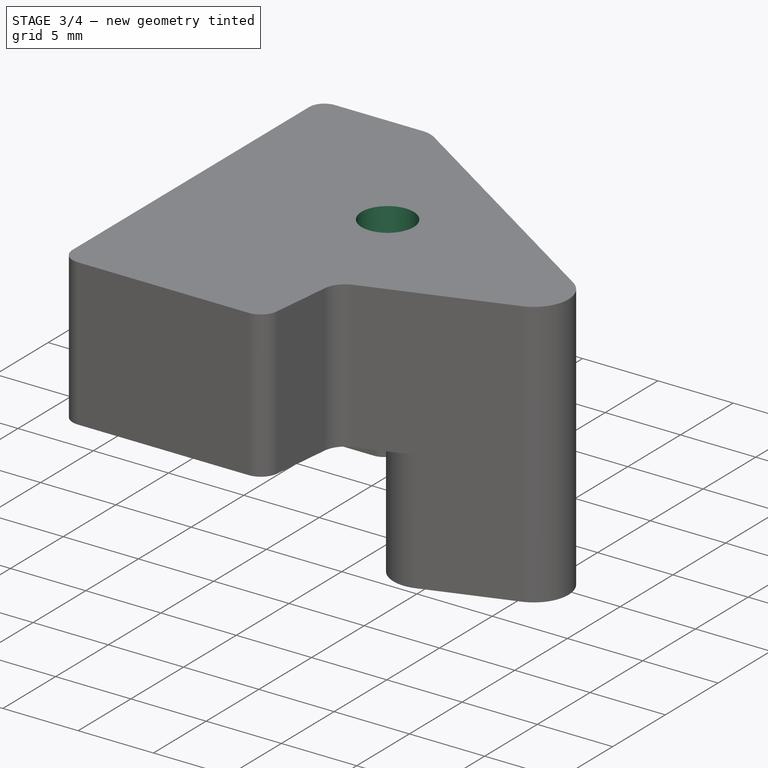
[diagram: stage 3 of 4 — iso view after this stage's code; geometry added in this stage tinted green]
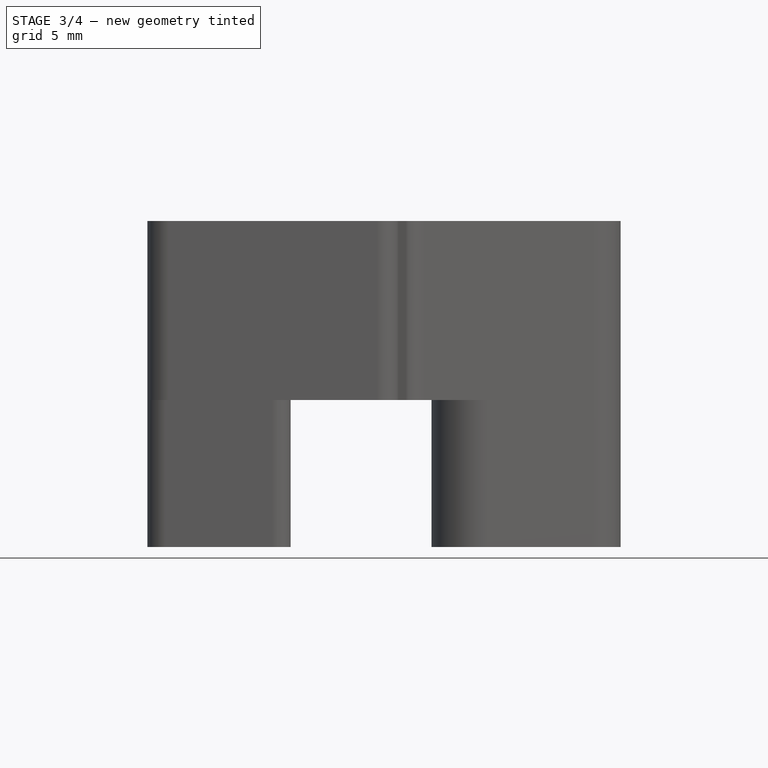
[diagram: stage 3 of 4 — front view after this stage's code; geometry added in this stage tinted green]
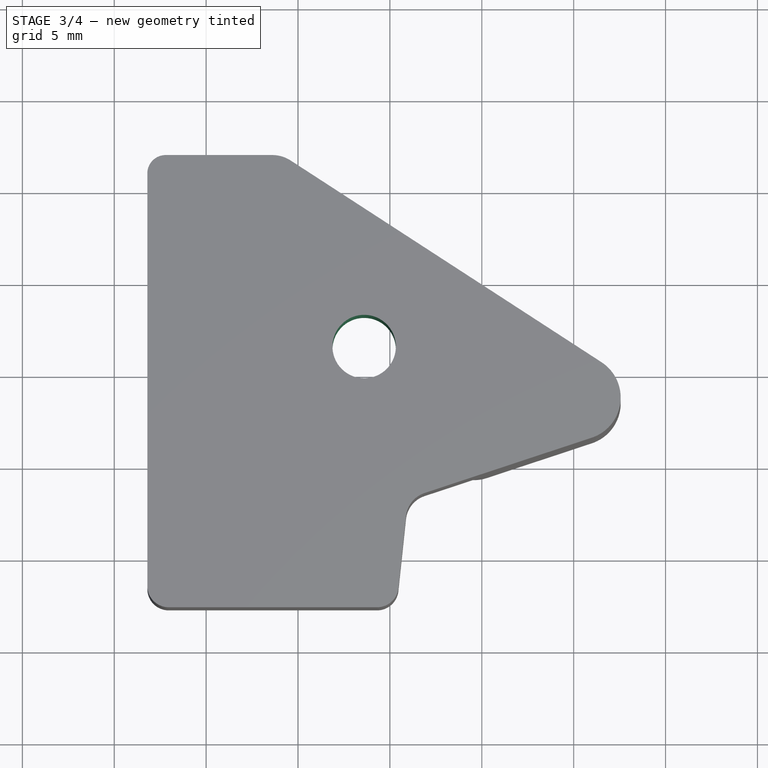
[diagram: stage 3 of 4 — top view after this stage's code; geometry added in this stage tinted green]
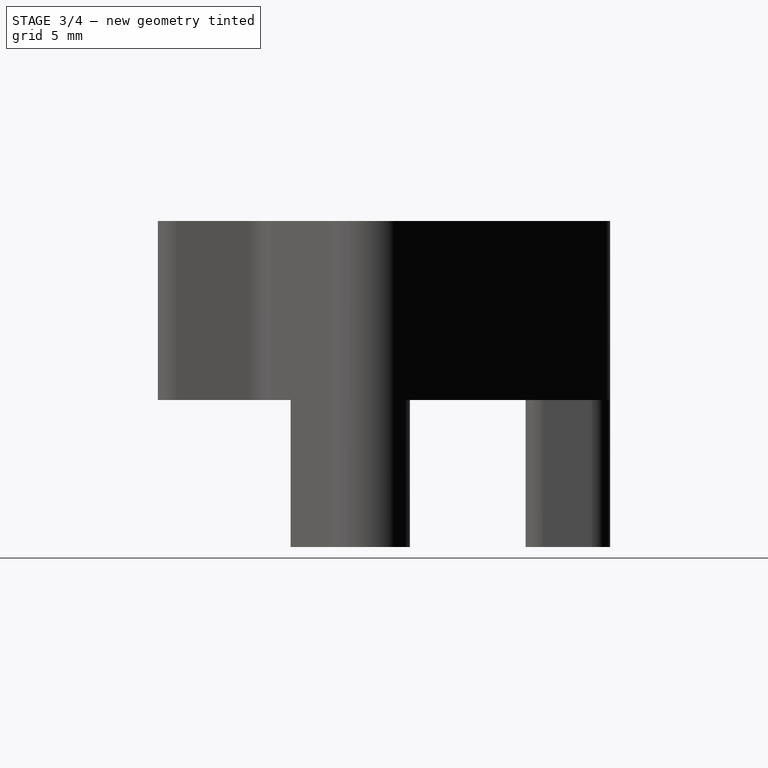
[diagram: stage 3 of 4 — right view after this stage's code; geometry added in this stage tinted green]
FEATURE [Sketcher::SketchObject] Sketch016  label="MagnetHoleCutter"
  AttachmentSupport = -> [Pad006]
  ExternalGeometry = -> [ShapeBinder001]
  FullyConstrained = true
  MapMode = 5
  Placement = pos=(0,-3.9e-15,-17.743) rot=(1,0,0;3.14159rad)
  expr: Constraints[16] = <<Spreadsheet>>.magnet_distance * 2
  expr: Constraints[45] = <<Spreadsheet>>.magnet_distance * 2
  sketch-geometry (16):
    g0: LineSegment StartX=8.6 StartY=3.63977 StartZ=0 EndX=7.28222 EndY=-0.342682 EndZ=0
    g1: LineSegment StartX=7.28222 StartY=-0.342682 StartZ=0 EndX=7.47209 EndY=-0.405511 EndZ=0
    g2: LineSegment StartX=-2.3 StartY=-2.982 StartZ=0 EndX=-2.3 EndY=-5.982 EndZ=0
    g3: LineSegment StartX=-2.3 StartY=-5.982 StartZ=0 EndX=3.7 EndY=-5.982 EndZ=0
    g4: LineSegment StartX=3.7 StartY=-5.982 StartZ=0 EndX=3.7 EndY=-2.982 EndZ=0
    g5: LineSegment StartX=3.7 StartY=-2.982 StartZ=0 EndX=-2.3 EndY=-2.982 EndZ=0
    g6: LineSegment StartX=13.5877 StartY=5.35999 StartZ=0 EndX=12.6453 EndY=2.51186 EndZ=0
    g7: LineSegment StartX=12.6453 StartY=2.51186 StartZ=0 EndX=18.3415 EndY=0.626987 EndZ=0
    g8: LineSegment StartX=18.3415 StartY=0.626987 StartZ=0 EndX=19.284 EndY=3.47511 EndZ=0
    g9: LineSegment StartX=19.284 StartY=3.47511 StartZ=0 EndX=13.5877 EndY=5.35999 EndZ=0
    g10: LineSegment StartX=8.6 StartY=3.63977 StartZ=0 EndX=12.5824 EndY=2.32199 EndZ=0
    g11: LineSegment StartX=12.5824 StartY=2.32199 StartZ=0 EndX=12.6453 EndY=2.51186 EndZ=0
    g12: LineSegment StartX=15.0328 StartY=9.72711 StartZ=0 EndX=20.729 EndY=7.84224 EndZ=0
    g13: LineSegment StartX=20.729 StartY=7.84224 StartZ=0 EndX=19.7866 EndY=4.99411 EndZ=0
    g14: LineSegment StartX=19.7866 StartY=4.99411 StartZ=0 EndX=14.0903 EndY=6.87899 EndZ=0
    g15: LineSegment StartX=14.0903 StartY=6.87899 StartZ=0 EndX=15.0328 EndY=9.72711 EndZ=0
  constraints (46):
    c: Coincident(g0,g-10)
    c: Coincident(g0,g1)
    c: Coincident(g1,g-9)
    c: Perpendicular(g0,g1)
    c: Perpendicular(g-6,g1)
    c: Coincident(g2,g3)
    c: Coincident(g3,g4)
    c: Coincident(g4,g5)
    c: Coincident(g5,g2)
    c: Vertical(g2)
    c: Vertical(g4)
    c: Horizontal(g3)
    c: Horizontal(g5)
    c: PointOnObject(g2,g-3)
    c: PointOnObject(g3,g-5)
    c: Equal(g-3,g2)
    c: Distance(g3,g-4) = 1.6
    c: Coincident(g6,g7)
    c: Coincident(g7,g8)
    c: Coincident(g8,g9)
    c: Coincident(g9,g6)
    c: Perpendicular(g9,g6)
    c: Perpendicular(g8,g9)
    c: Perpendicular(g8,g7)
    c: Equal(g-9,g6)
    c: Equal(g-8,g7)
    c: Coincident(g0,g10)
    c: Coincident(g10,g11)
    c: Coincident(g11,g6)
    c: Perpendicular(g11,g7)
    c: Perpendicular(g6,g-9)
    c: Equal(g10,g0)
    c: Equal(g1,g11)
    c: Perpendicular(g11,g10)
    c: Coincident(g12,g13)
    c: Coincident(g13,g14)
    c: Coincident(g14,g15)
    c: Coincident(g15,g12)
    c: Equal(g15,g13)
    c: Equal(g14,g12)
    c: Perpendicular(g12,g15)
    c: Equal(g6,g15)
    c: PointOnObject(g14,g6)
    c: PointOnObject(g13,g8)
    c: Parallel(g9,g14)
    c: Distance(g14,g9) = 1.6
FEATURE [PartDesign::Pocket] Pocket001
  BaseFeature = -> Pad006
  Direction = (0,0,1)
  Length = 7
  Length2 = 5
  Profile = -> Sketch016
  ReferenceAxis = -> Sketch016 [N_Axis]
  Refine = true
  Suppressed = false
  Type = 0
  expr: Length = <<Spreadsheet>>.magnet_diameter + 1
FEATURE [Sketcher::SketchObject] Sketch017
  AttachmentSupport = -> [Pocket001]
  ExternalGeometry = -> [ShapeBinder001]
  FullyConstrained = true
  MapMode = 5
  Placement = pos=(0,-2.1e-15,-9.743) rot=(1,0,0;3.14159rad)
  sketch-geometry (1):
    g0: Circle CenterX=8.6 CenterY=3.63977 CenterZ=0 NormalX=0 NormalY=0 NormalZ=1 AngleXU=0 Radius=1.725
  constraints (2):
    c: Radius(g0) = 1.725
    c: Coincident(g0,g-3)
FEATURE [PartDesign::Pocket] Pocket002
  BaseFeature = -> Pocket001
  Direction = (0,0,1)
  Length = 5
  Length2 = 5
  Profile = -> Sketch017
  ReferenceAxis = -> Sketch017 [N_Axis]
  Refine = true
  Suppressed = false
  Type = 1
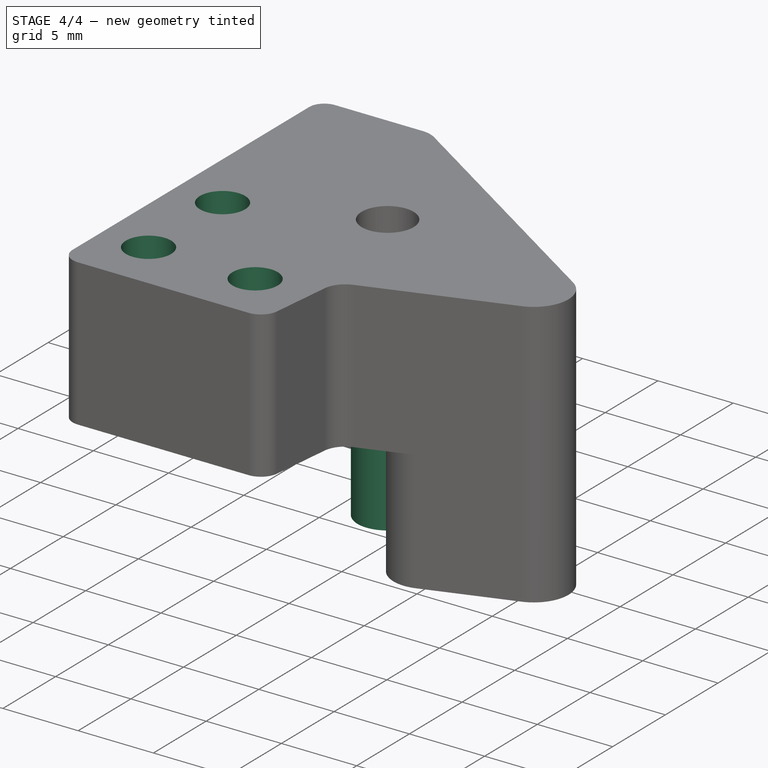
[diagram: stage 4 of 4 — iso view after this stage's code; geometry added in this stage tinted green]
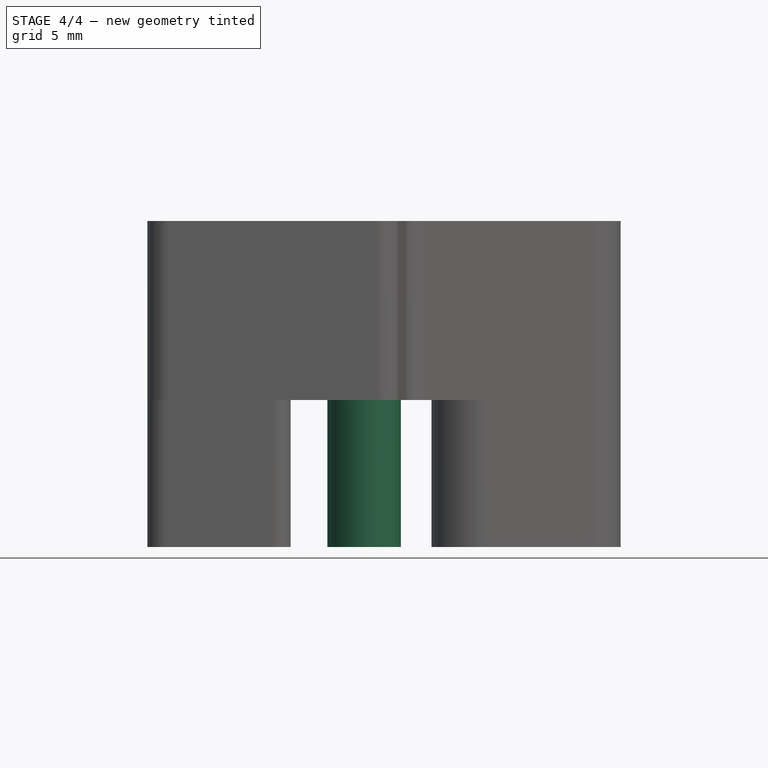
[diagram: stage 4 of 4 — front view after this stage's code; geometry added in this stage tinted green]
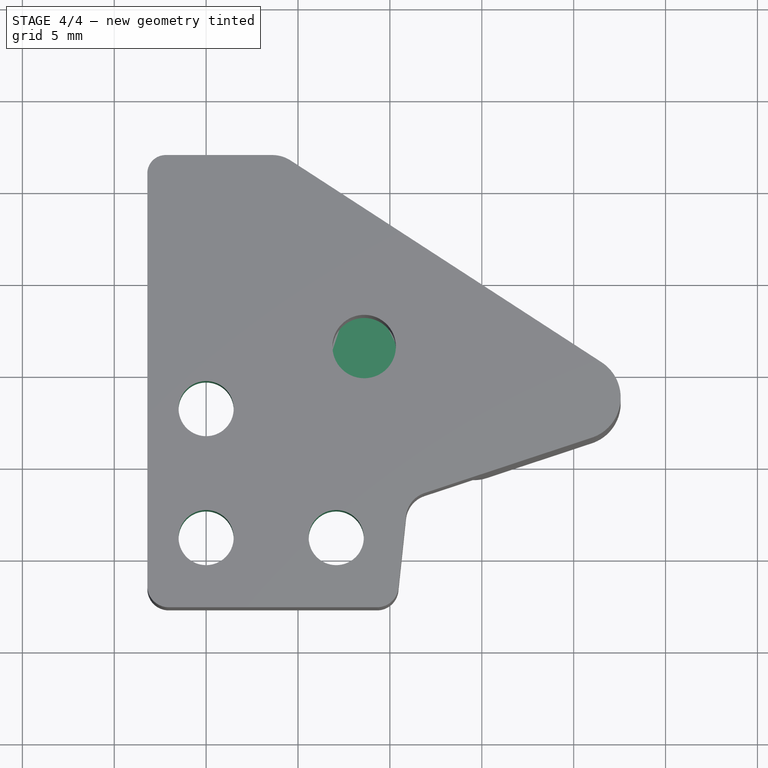
[diagram: stage 4 of 4 — top view after this stage's code; geometry added in this stage tinted green]
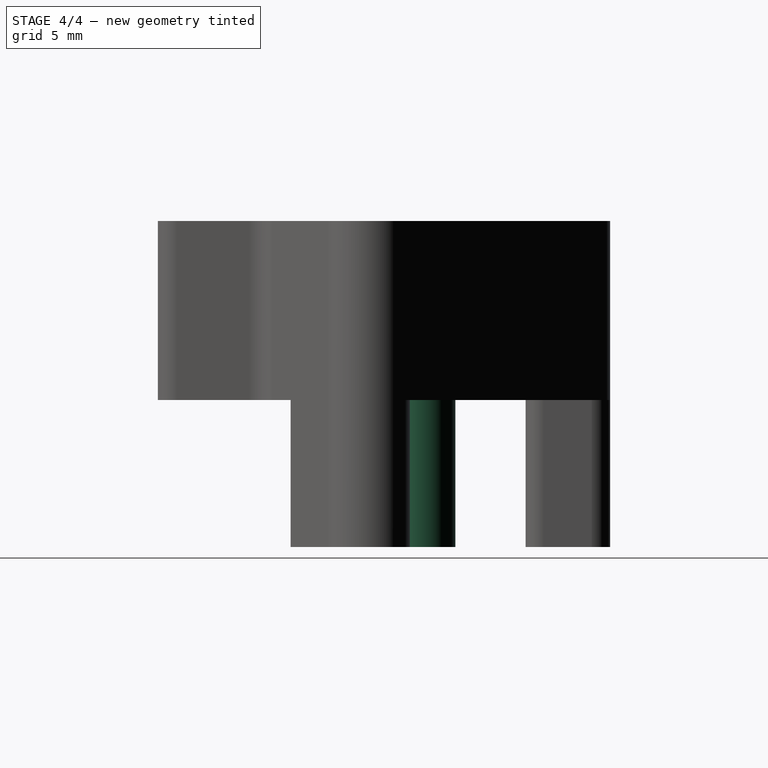
[diagram: stage 4 of 4 — right view after this stage's code; geometry added in this stage tinted green]
FEATURE [PartDesign::Body] Body
  Group = -> [Sketch,Pad,DatumPlane,Sketch001,Pad001,DatumPlane005,Sketch013,Pocket]
  Origin = -> Origin
  Tip = -> Pocket
FEATURE [PartDesign::ShapeBinder] ShapeBinder
  Support = -> [Body]
  TraceSupport = false
FEATURE [PartDesign::Plane] DatumPlane002
  AttachmentSupport = -> [ShapeBinder]
  Length = 60
  MapMode = 5
  Placement = pos=(0,-2.1e-15,-9.743) rot=(0,0,1;0rad)
  ResizeMode = 0
  Width = 60
FEATURE [Sketcher::SketchObject] Sketch006
  AttachmentSupport = -> [DatumPlane002]
  ExternalGeometry = -> [ShapeBinder]
  FullyConstrained = true
  MapMode = 5
  Placement = pos=(0,-2.1e-15,-9.743) rot=(0,0,1;0rad)
  sketch-geometry (1):
    g0: Circle CenterX=8.6 CenterY=-3.63977 CenterZ=0 NormalX=0 NormalY=0 NormalZ=1 AngleXU=0 Radius=2
  constraints (2):
    c: Radius(g0) = 2
    c: Coincident(g-4,g0)
FEATURE [PartDesign::Pad] Pad004
  Direction = (0,0,1)
  Length = 10
  Length2 = 10
  Placement = pos=(0,-2.2e-15,-9.743) rot=(0,0,1;0rad)
  Profile = -> Sketch006
  ReferenceAxis = -> Sketch006 [N_Axis]
  Refine = true
  Suppressed = false
  Type = 3
  UpToFace = -> Pocket [Face32]
FEATURE [PartDesign::Pocket] Pocket003
  BaseFeature = -> Pocket002
  Direction = (0,0,-1)
  Length = 5
  Length2 = 5
  Profile = -> Sketch018
  ReferenceAxis = -> Sketch018 [N_Axis]
  Refine = true
  Suppressed = false
  Type = 1
FEATURE [Sketcher::SketchObject] Sketch019
  AttachmentSupport = -> [Pocket003]
  ExternalGeometry = -> [ShapeBinder002]
  FullyConstrained = true
  MapMode = 5
  Placement = pos=(0,-2.1e-15,-9.743) rot=(1,0,0;3.14159rad)
  sketch-geometry (3):
    g0: Circle CenterX=0 CenterY=14.036 CenterZ=0 NormalX=0 NormalY=0 NormalZ=1 AngleXU=0 Radius=2.75
    g1: Circle CenterX=7.08 CenterY=14.036 CenterZ=0 NormalX=0 NormalY=0 NormalZ=1 AngleXU=0 Radius=2.75
    g2: Circle CenterX=0 CenterY=7.018 CenterZ=0 NormalX=0 NormalY=0 NormalZ=1 AngleXU=0 Radius=2.75
  constraints (6):
    c: Radius(g0) = 2.75
    c: Coincident(g0,g-4)
    c: Coincident(g1,g-5)
    c: Coincident(g2,g-3)
    c: Equal(g0,g2)
    c: Equal(g0,g1)
FEATURE [PartDesign::Pocket] Pocket004
  BaseFeature = -> Pocket003
  Direction = (0,0,1)
  Length = 5
  Length2 = 5
  Profile = -> Sketch019
  ReferenceAxis = -> Sketch019 [N_Axis]
  Refine = true
  Suppressed = false
  Type = 0
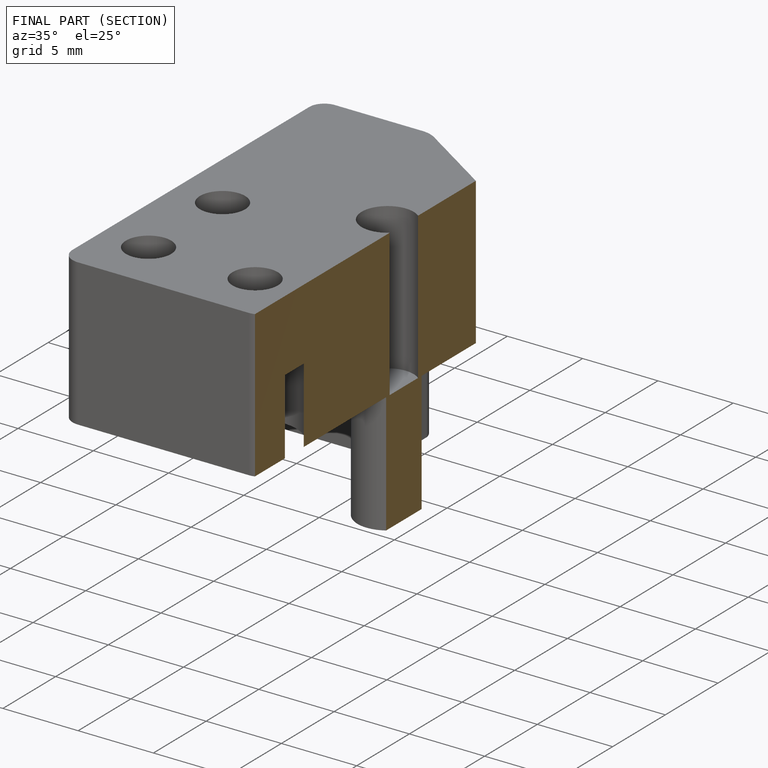
[diagram: finished part — half-section view (interior)]
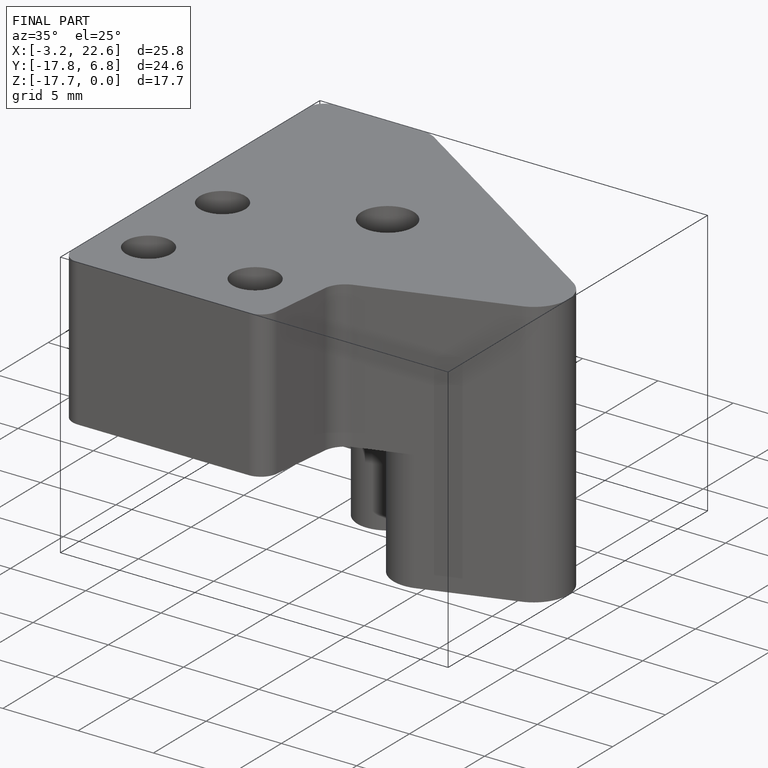
[diagram: finished part — iso view with bounding-box wireframe]
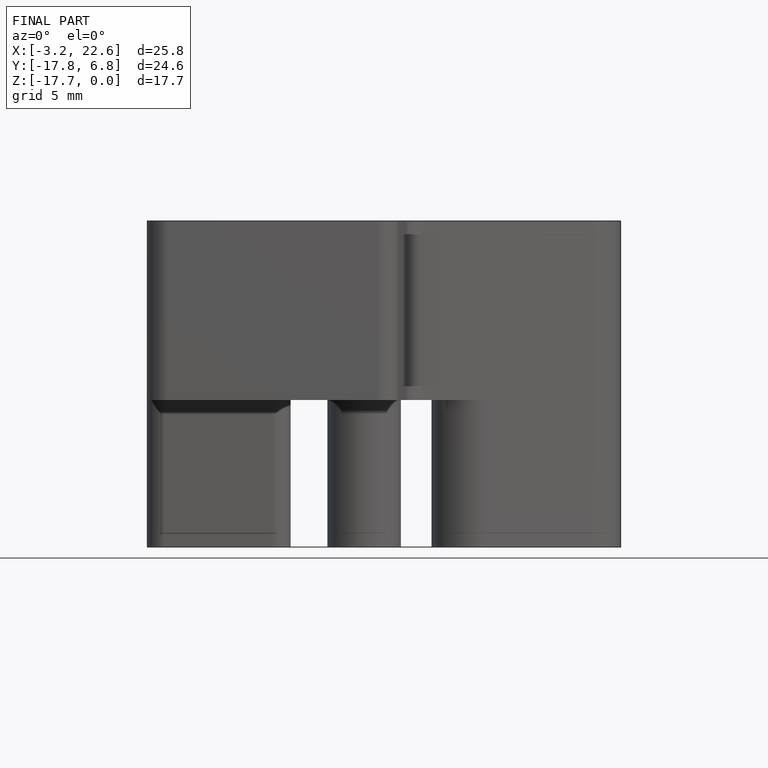
[diagram: finished part — front view with bounding-box wireframe]
